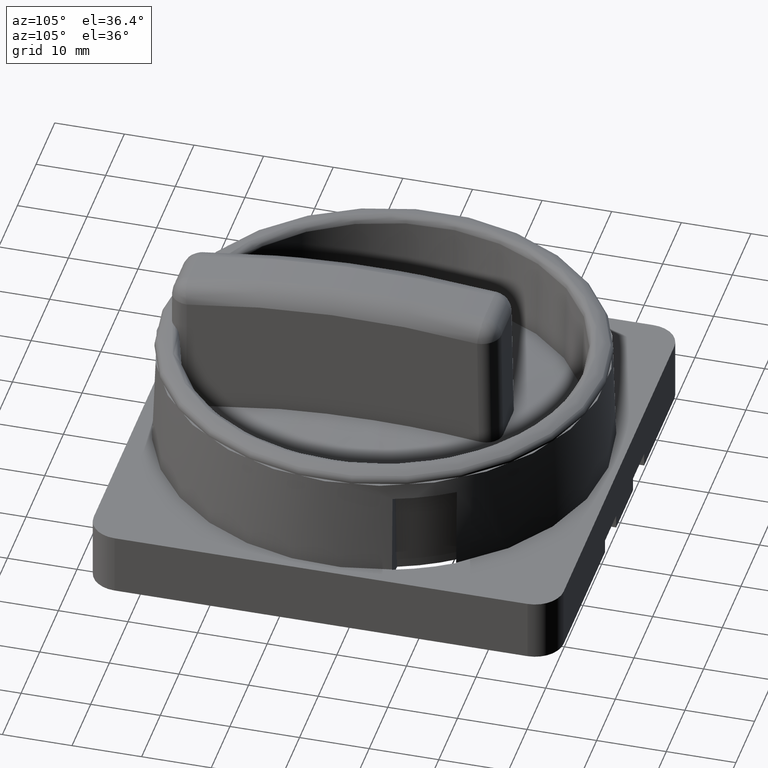
[diagram: clean part render]
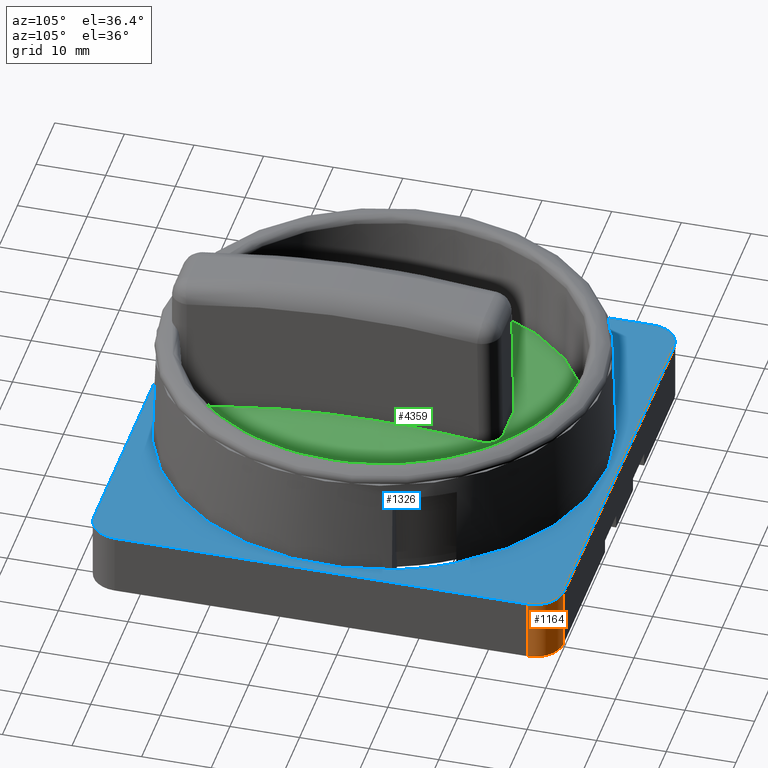
[diagram: same view with three faces highlighted in distinct colors, each labeled with its STEP entity id]
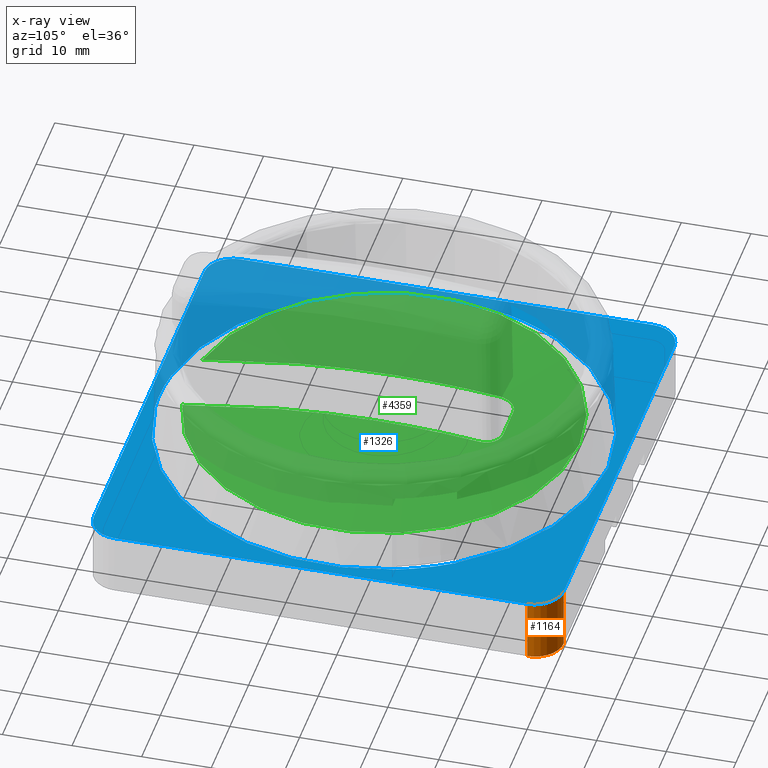
[diagram: x-ray of the same camera — body ghosted, the three highlighted faces saturated]
A machine part, auxiliary view with three faces highlighted in distinct colors.
The next image is the same camera in x-ray (body ghosted, the three faces saturated) — at least one of them is partly hidden behind the body in this view.
Their STEP definitions:

[orange] entity #1164 — the highlighted cylindrical surface (edge-blend (fillet) strip) has radius 4.1 mm, axis along (0, 0, -1).
#245=CARTESIAN_POINT('',(141.33807375256998,150.264225820018,50.0));
#246=VERTEX_POINT('',#245);
#253=CARTESIAN_POINT('',(145.43807423814602,146.16422533444199,50.0));
#254=VERTEX_POINT('',#253);
#255=CARTESIAN_POINT('',(141.33807375256998,146.16422533444199,50.0));
#256=DIRECTION('',(0.0,0.0,-1.0));
#257=DIRECTION('',(1.0,0.0,0.0));
#258=AXIS2_PLACEMENT_3D('',#255,#256,#257);
#259=CIRCLE('',#258,4.100000485576);
#260=EDGE_CURVE('',#246,#254,#259,.T.);
#1108=CARTESIAN_POINT('',(141.33807375256998,150.264225820018,59.0));
#1109=VERTEX_POINT('',#1108);
#1116=CARTESIAN_POINT('',(141.33807375256998,150.264225820018,59.0));
#1117=DIRECTION('',(0.0,0.0,-1.0));
#1118=VECTOR('',#1117,9.0);
#1119=LINE('',#1116,#1118);
#1120=EDGE_CURVE('',#1109,#246,#1119,.T.);
#1140=CARTESIAN_POINT('',(141.33807375256998,146.16422533444199,59.0));
#1141=DIRECTION('',(0.0,0.0,-1.0));
#1142=DIRECTION('',(-1.0,0.0,0.0));
#1143=AXIS2_PLACEMENT_3D('',#1140,#1141,#1142);
#1144=CYLINDRICAL_SURFACE('',#1143,4.100000485576);
#1145=ORIENTED_EDGE('',*,*,#260,.F.);
#1146=ORIENTED_EDGE('',*,*,#1120,.F.);
#1147=CARTESIAN_POINT('',(145.43807423814602,146.16422533444199,59.0));
#1148=VERTEX_POINT('',#1147);
#1149=CARTESIAN_POINT('',(141.33807375256998,146.16422533444199,59.0));
#1150=DIRECTION('',(0.0,0.0,-1.0));
#1151=DIRECTION('',(1.0,0.0,0.0));
#1152=AXIS2_PLACEMENT_3D('',#1149,#1150,#1151);
#1153=CIRCLE('',#1152,4.100000485576);
#1154=EDGE_CURVE('',#1109,#1148,#1153,.T.);
#1155=ORIENTED_EDGE('',*,*,#1154,.T.);
#1156=CARTESIAN_POINT('',(145.43807423814602,146.16422533444199,59.0));
#1157=DIRECTION('',(0.0,0.0,-1.0));
#1158=VECTOR('',#1157,9.0);
#1159=LINE('',#1156,#1158);
#1160=EDGE_CURVE('',#1148,#254,#1159,.T.);
#1161=ORIENTED_EDGE('',*,*,#1160,.T.);
#1162=EDGE_LOOP('',(#1145,#1146,#1155,#1161));
#1163=FACE_OUTER_BOUND('',#1162,.T.);
#1164=ADVANCED_FACE('',(#1163),#1144,.T.);

[blue] entity #1326 — the highlighted planar face has unit normal (0, 0, -1).
#971=CARTESIAN_POINT('',(141.33807375256998,82.764225820017913,59.0));
#972=VERTEX_POINT('',#971);
#979=CARTESIAN_POINT('',(82.038074723722204,82.764225820017913,59.0));
#980=VERTEX_POINT('',#979);
#981=CARTESIAN_POINT('',(141.33807375256998,82.764225820017913,59.0));
#982=DIRECTION('',(-1.0,0.0,0.0));
#983=VECTOR('',#982,59.299999028847793);
#984=LINE('',#981,#983);
#985=EDGE_CURVE('',#972,#980,#984,.T.);
#1003=CARTESIAN_POINT('',(77.9380742381462,86.864226305594087,58.999999999999801));
#1004=VERTEX_POINT('',#1003);
#1005=CARTESIAN_POINT('',(82.038074723722318,86.864226305594087,58.999999999999801));
#1006=DIRECTION('',(0.0,0.0,-1.0));
#1007=DIRECTION('',(-1.0,0.0,0.0));
#1008=AXIS2_PLACEMENT_3D('',#1005,#1006,#1007);
#1009=CIRCLE('',#1008,4.10000048557613);
#1010=EDGE_CURVE('',#980,#1004,#1009,.T.);
#1028=CARTESIAN_POINT('',(77.9380742381461,146.16422533444199,59.0));
#1029=VERTEX_POINT('',#1028);
#1030=CARTESIAN_POINT('',(77.938074238146001,86.864226305594087,59.0));
#1031=DIRECTION('',(0.0,1.0,0.0));
#1032=VECTOR('',#1031,59.299999028847907);
#1033=LINE('',#1030,#1032);
#1034=EDGE_CURVE('',#1004,#1029,#1033,.T.);
#1052=CARTESIAN_POINT('',(82.038074723722104,150.264225820018,59.0));
#1053=VERTEX_POINT('',#1052);
#1054=CARTESIAN_POINT('',(82.038074723722104,146.16422533444199,59.0));
#1055=DIRECTION('',(0.0,0.0,-1.0));
#1056=DIRECTION('',(0.0,1.0,0.0));
#1057=AXIS2_PLACEMENT_3D('',#1054,#1055,#1056);
#1058=CIRCLE('',#1057,4.10000048557607);
#1059=EDGE_CURVE('',#1029,#1053,#1058,.T.);
#1108=CARTESIAN_POINT('',(141.33807375256998,150.264225820018,59.0));
#1109=VERTEX_POINT('',#1108);
#1110=CARTESIAN_POINT('',(82.038074723722104,150.264225820018,59.0));
#1111=DIRECTION('',(1.0,0.0,0.0));
#1112=VECTOR('',#1111,59.299999028847878);
#1113=LINE('',#1110,#1112);
#1114=EDGE_CURVE('',#1053,#1109,#1113,.T.);
#1147=CARTESIAN_POINT('',(145.43807423814602,146.16422533444199,59.0));
#1148=VERTEX_POINT('',#1147);
#1149=CARTESIAN_POINT('',(141.33807375256998,146.16422533444199,59.0));
#1150=DIRECTION('',(0.0,0.0,-1.0));
#1151=DIRECTION('',(1.0,0.0,0.0));
#1152=AXIS2_PLACEMENT_3D('',#1149,#1150,#1151);
#1153=CIRCLE('',#1152,4.100000485576);
#1154=EDGE_CURVE('',#1109,#1148,#1153,.T.);
#1172=CARTESIAN_POINT('',(145.43807423814602,86.864226305594002,59.0));
#1173=VERTEX_POINT('',#1172);
#1174=CARTESIAN_POINT('',(145.43807423814602,146.16422533444199,59.0));
#1175=DIRECTION('',(0.0,-1.0,0.0));
#1176=VECTOR('',#1175,59.299999028848006);
#1177=LINE('',#1174,#1176);
#1178=EDGE_CURVE('',#1148,#1173,#1177,.T.);
#1196=CARTESIAN_POINT('',(141.33807375256998,86.864226305594002,59.0));
#1197=DIRECTION('',(0.0,0.0,-1.0));
#1198=DIRECTION('',(0.0,-1.0,0.0));
#1199=AXIS2_PLACEMENT_3D('',#1196,#1197,#1198);
#1200=CIRCLE('',#1199,4.10000048557608);
#1201=EDGE_CURVE('',#1173,#972,#1200,.T.);
#1207=CARTESIAN_POINT('',(82.038074723722318,86.864226305594087,58.999999999999801));
#1208=DIRECTION('',(0.0,0.0,-1.0));
#1209=DIRECTION('',(-1.0,0.0,0.0));
#1210=AXIS2_PLACEMENT_3D('',#1207,#1208,#1209);
#1211=PLANE('',#1210);
#1212=ORIENTED_EDGE('',*,*,#985,.F.);
#1213=ORIENTED_EDGE('',*,*,#1201,.F.);
#1214=ORIENTED_EDGE('',*,*,#1178,.F.);
#1215=ORIENTED_EDGE('',*,*,#1154,.F.);
#1216=ORIENTED_EDGE('',*,*,#1114,.F.);
#1217=ORIENTED_EDGE('',*,*,#1059,.F.);
#1218=ORIENTED_EDGE('',*,*,#1034,.F.);
#1219=ORIENTED_EDGE('',*,*,#1010,.F.);
#1220=EDGE_LOOP('',(#1212,#1213,#1214,#1215,#1216,#1217,#1218,#1219));
#1221=FACE_OUTER_BOUND('',#1220,.T.);
#1222=CARTESIAN_POINT('',(106.55728400000301,84.697526651739707,59.0));
#1223=VERTEX_POINT('',#1222);
#1224=CARTESIAN_POINT('',(80.861667390058599,125.91422556835502,59.0));
#1225=VERTEX_POINT('',#1224);
#1226=CARTESIAN_POINT('',(111.68807423814602,116.51422582001801,59.0));
#1227=DIRECTION('',(0.0,0.0,-1.0));
#1228=DIRECTION('',(-1.0,0.0,0.0));
#1229=AXIS2_PLACEMENT_3D('',#1226,#1227,#1228);
#1230=CIRCLE('',#1229,32.227742000216899);
#1231=EDGE_CURVE('',#1223,#1225,#1230,.T.);
#1232=ORIENTED_EDGE('',*,*,#1231,.T.);
#1233=CARTESIAN_POINT('',(80.7861324750275,125.91422556835502,58.999999999999801));
#1234=VERTEX_POINT('',#1233);
#1235=CARTESIAN_POINT('',(80.861667390058599,125.91422556835502,58.999999999999801));
#1236=DIRECTION('',(-1.0,0.0,0.0));
#1237=VECTOR('',#1236,0.075534915031099);
#1238=LINE('',#1235,#1237);
#1239=EDGE_CURVE('',#1225,#1234,#1238,.T.);
#1240=ORIENTED_EDGE('',*,*,#1239,.T.);
#1241=CARTESIAN_POINT('',(84.60431510359291,134.11422556835501,58.999999999999801));
#1242=VERTEX_POINT('',#1241);
#1243=CARTESIAN_POINT('',(111.688074238148,116.51422582001901,58.999999999999702));
#1244=DIRECTION('',(0.0,0.0,-1.0));
#1245=DIRECTION('',(-1.0,0.0,0.0));
#1246=AXIS2_PLACEMENT_3D('',#1243,#1244,#1245);
#1247=CIRCLE('',#1246,32.299999999999898);
#1248=EDGE_CURVE('',#1234,#1242,#1247,.T.);
#1249=ORIENTED_EDGE('',*,*,#1248,.T.);
#1250=CARTESIAN_POINT('',(84.690530585230192,134.11422556835501,59.0));
#1251=VERTEX_POINT('',#1250);
#1252=CARTESIAN_POINT('',(84.60431510359291,134.11422556835501,58.999999999999801));
#1253=DIRECTION('',(1.0,0.0,0.0));
#1254=VECTOR('',#1253,0.086215481637296);
#1255=LINE('',#1252,#1254);
#1256=EDGE_CURVE('',#1242,#1251,#1255,.T.);
#1257=ORIENTED_EDGE('',*,*,#1256,.T.);
#1258=CARTESIAN_POINT('',(138.68561789106201,134.11422556835501,59.0));
#1259=VERTEX_POINT('',#1258);
#1260=CARTESIAN_POINT('',(111.68807423814602,116.51422582001801,59.0));
#1261=DIRECTION('',(0.0,0.0,-1.0));
#1262=DIRECTION('',(-1.0,0.0,0.0));
#1263=AXIS2_PLACEMENT_3D('',#1260,#1261,#1262);
#1264=CIRCLE('',#1263,32.227742000216899);
#1265=EDGE_CURVE('',#1251,#1259,#1264,.T.);
#1266=ORIENTED_EDGE('',*,*,#1265,.T.);
#1267=CARTESIAN_POINT('',(138.77183337270304,134.11422556835501,58.999999999999801));
#1268=VERTEX_POINT('',#1267);
#1269=CARTESIAN_POINT('',(138.68561789106201,134.11422556835501,58.999999999999801));
#1270=DIRECTION('',(1.0,0.0,0.0));
#1271=VECTOR('',#1270,0.086215481641005);
#1272=LINE('',#1269,#1271);
#1273=EDGE_CURVE('',#1259,#1268,#1272,.T.);
#1274=ORIENTED_EDGE('',*,*,#1273,.T.);
#1275=CARTESIAN_POINT('',(142.590016001268,125.914225568354,58.999999999999801));
#1276=VERTEX_POINT('',#1275);
#1277=CARTESIAN_POINT('',(111.688074238148,116.51422582001901,58.999999999999702));
#1278=DIRECTION('',(0.0,0.0,-1.0));
#1279=DIRECTION('',(-1.0,0.0,0.0));
#1280=AXIS2_PLACEMENT_3D('',#1277,#1278,#1279);
#1281=CIRCLE('',#1280,32.300000000000196);
#1282=EDGE_CURVE('',#1268,#1276,#1281,.T.);
#1283=ORIENTED_EDGE('',*,*,#1282,.T.);
#1284=CARTESIAN_POINT('',(142.51448108623401,125.914225568354,59.0));
#1285=VERTEX_POINT('',#1284);
#1286=CARTESIAN_POINT('',(142.590016001268,125.91422556836001,58.999999999999801));
#1287=DIRECTION('',(-1.0,0.0,0.0));
#1288=VECTOR('',#1287,0.075534915034012);
#1289=LINE('',#1286,#1288);
#1290=EDGE_CURVE('',#1276,#1285,#1289,.T.);
#1291=ORIENTED_EDGE('',*,*,#1290,.T.);
#1292=CARTESIAN_POINT('',(114.75732674849901,84.432968932853612,59.0));
#1293=VERTEX_POINT('',#1292);
#1294=CARTESIAN_POINT('',(111.68807423814602,116.51422582001801,59.0));
#1295=DIRECTION('',(0.0,0.0,-1.0));
#1296=DIRECTION('',(-1.0,0.0,0.0));
#1297=AXIS2_PLACEMENT_3D('',#1294,#1295,#1296);
#1298=CIRCLE('',#1297,32.227742000216899);
#1299=EDGE_CURVE('',#1285,#1293,#1298,.T.);
#1300=ORIENTED_EDGE('',*,*,#1299,.T.);
#1301=CARTESIAN_POINT('',(114.75732674941845,84.36038172414122,58.999999999999709));
#1302=VERTEX_POINT('',#1301);
#1303=CARTESIAN_POINT('',(114.75732674849901,84.432968932853612,58.999999999999702));
#1304=DIRECTION('',(0.0,-1.0,0.0));
#1305=VECTOR('',#1304,0.072587208712378);
#1306=LINE('',#1303,#1305);
#1307=EDGE_CURVE('',#1293,#1302,#1306,.T.);
#1308=ORIENTED_EDGE('',*,*,#1307,.T.);
#1309=CARTESIAN_POINT('',(106.55732081327102,84.624331350248298,58.999999999999801));
#1310=VERTEX_POINT('',#1309);
#1311=CARTESIAN_POINT('',(111.68807430699999,116.51422583108,58.999999999999702));
#1312=DIRECTION('',(0.0,0.0,-1.0));
#1313=DIRECTION('',(-1.0,0.0,0.0));
#1314=AXIS2_PLACEMENT_3D('',#1311,#1312,#1313);
#1315=CIRCLE('',#1314,32.300000021857599);
#1316=EDGE_CURVE('',#1302,#1310,#1315,.T.);
#1317=ORIENTED_EDGE('',*,*,#1316,.T.);
#1318=CARTESIAN_POINT('',(106.55732081327089,84.624331350248298,58.999999999999801));
#1319=DIRECTION('',(-0.000502945711088,0.999999873522798,0.0));
#1320=VECTOR('',#1319,0.073195310748948);
#1321=LINE('',#1318,#1320);
#1322=EDGE_CURVE('',#1310,#1223,#1321,.T.);
#1323=ORIENTED_EDGE('',*,*,#1322,.T.);
#1324=EDGE_LOOP('',(#1232,#1240,#1249,#1257,#1266,#1274,#1283,#1291,#1300,#1308,#1317,#1323));
#1325=FACE_BOUND('',#1324,.T.);
#1326=ADVANCED_FACE('',(#1221,#1325),#1211,.F.);

[green] entity #4359 — the highlighted spherical surface has radius 145 mm.
#3363=CARTESIAN_POINT('',(117.142176670976,116.51422582001801,64.851939814165604));
#3364=VERTEX_POINT('',#3363);
#3365=CARTESIAN_POINT('',(117.14137186607906,116.51422582001815,64.851970105068773));
#3366=VERTEX_POINT('',#3365);
#3367=CARTESIAN_POINT('',(111.68807423814602,116.51422582001801,-80.045447210763911));
#3368=DIRECTION('',(0.0,-1.0,0.0));
#3369=DIRECTION('',(0.0,0.0,-1.0));
#3370=AXIS2_PLACEMENT_3D('',#3367,#3368,#3369);
#3371=CIRCLE('',#3370,145.0);
#3372=EDGE_CURVE('',#3364,#3366,#3371,.T.);
#3507=CARTESIAN_POINT('',(106.22779365991902,131.60022408054999,64.064226276099205));
#3508=VERTEX_POINT('',#3507);
#3515=CARTESIAN_POINT('',(106.23397180531599,116.51422582001801,64.851939814165604));
#3516=VERTEX_POINT('',#3515);
#3517=CARTESIAN_POINT('',(105.09792710259902,116.51422582001801,-79.993759782249811));
#3518=DIRECTION('',(0.999969244017954,0.0,-0.007842896031513));
#3519=DIRECTION('',(-0.007842896031513,0.0,-0.999969244017954));
#3520=AXIS2_PLACEMENT_3D('',#3517,#3518,#3519);
#3521=CIRCLE('',#3520,144.85015460517002);
#3522=EDGE_CURVE('',#3508,#3516,#3521,.T.);
#3564=CARTESIAN_POINT('',(108.97564366572702,134.35440186676601,63.82731198642));
#3565=VERTEX_POINT('',#3564);
#3566=CARTESIAN_POINT('',(114.40050481056502,134.35440186676601,63.82731198642));
#3567=VERTEX_POINT('',#3566);
#3568=CARTESIAN_POINT('',(111.68807423814602,136.85951143274602,-79.690318929410594));
#3569=DIRECTION('',(0.0,0.999847695156391,0.017452406437284));
#3570=DIRECTION('',(0.0,-0.017452406437284,0.999847695156391));
#3571=AXIS2_PLACEMENT_3D('',#3568,#3569,#3570);
#3572=CIRCLE('',#3571,143.56511845584299);
#3573=EDGE_CURVE('',#3565,#3567,#3572,.T.);
#3605=CARTESIAN_POINT('',(106.23477661021325,116.51422582001805,64.851970105068773));
#3606=VERTEX_POINT('',#3605);
#3607=CARTESIAN_POINT('',(111.68807423814602,116.51422582001801,-80.045447210763911));
#3608=DIRECTION('',(0.0,-1.0,0.0));
#3609=DIRECTION('',(0.0,0.0,-1.0));
#3610=AXIS2_PLACEMENT_3D('',#3607,#3608,#3609);
#3611=CIRCLE('',#3610,145.0);
#3612=EDGE_CURVE('',#3606,#3516,#3611,.T.);
#3630=CARTESIAN_POINT('',(117.148354816373,131.60022408054999,64.064226276099205));
#3631=VERTEX_POINT('',#3630);
#3632=CARTESIAN_POINT('',(118.27822137369299,116.51422582001801,-79.993759782249811));
#3633=DIRECTION('',(-0.999969244017954,0.0,-0.007842896031513));
#3634=DIRECTION('',(-0.007842896031513,0.0,0.999969244017954));
#3635=AXIS2_PLACEMENT_3D('',#3632,#3633,#3634);
#3636=CIRCLE('',#3635,144.85015460517002);
#3637=EDGE_CURVE('',#3364,#3631,#3636,.T.);
#3679=CARTESIAN_POINT('',(106.22779365991966,131.60022408055002,64.06422627609912));
#3680=CARTESIAN_POINT('',(106.22750975412954,131.94590422520224,64.028028287858788));
#3681=CARTESIAN_POINT('',(106.29610144573309,132.31499042312655,63.990654864405634));
#3682=CARTESIAN_POINT('',(106.57670864245104,132.99472741162316,63.924700187214171));
#3683=CARTESIAN_POINT('',(106.78879981955048,133.30534865468758,63.896124912558392));
#3684=CARTESIAN_POINT('',(107.27775580590078,133.79413240886805,63.854076485026745));
#3685=CARTESIAN_POINT('',(107.58634749084115,134.00544918361328,63.83772431936444));
#3686=CARTESIAN_POINT('',(108.26283844124164,134.28564482048441,63.82108306323186));
#3687=CARTESIAN_POINT('',(108.63074108489434,134.35451561351317,63.820795439632491));
#3688=CARTESIAN_POINT('',(108.9756436657275,134.3544018667659,63.827311986419986));
#3689=B_SPLINE_CURVE_WITH_KNOTS('',3,(#3679,#3680,#3681,#3682,#3683,#3684,#3685,#3686,#3687,#3688),.UNSPECIFIED.,.F.,.U.,(4,2,2,2,4),(0.416401516330364,0.520667521218323,0.624971447378714,0.72846069403127,0.831949940683827),.UNSPECIFIED.);
#3690=EDGE_CURVE('',#3508,#3565,#3689,.T.);
#3709=CARTESIAN_POINT('',(114.40050481056502,134.35440186676635,63.827311986419886));
#3710=CARTESIAN_POINT('',(114.74540739139819,134.3545156135136,63.820795439632398));
#3711=CARTESIAN_POINT('',(115.1133100350505,134.28564482048489,63.821083063231789));
#3712=CARTESIAN_POINT('',(115.78980098545101,134.00544918361373,63.837724319364369));
#3713=CARTESIAN_POINT('',(116.09839267039136,133.79413240886851,63.854076485026653));
#3714=CARTESIAN_POINT('',(116.58734865674168,133.30534865468803,63.896124912558314));
#3715=CARTESIAN_POINT('',(116.79943983384109,132.99472741162367,63.924700187214142));
#3716=CARTESIAN_POINT('',(117.08004703055907,132.31499042312691,63.99065486440562));
#3717=CARTESIAN_POINT('',(117.14863872216267,131.94590422520238,64.028028287858746));
#3718=CARTESIAN_POINT('',(117.1483548163725,131.60022408055002,64.064226276099106));
#3719=B_SPLINE_CURVE_WITH_KNOTS('',3,(#3709,#3710,#3711,#3712,#3713,#3714,#3715,#3716,#3717,#3718),.UNSPECIFIED.,.F.,.U.,(4,2,2,2,4),(3.708378E-014,0.103489246652596,0.206978493305155,0.311282419465548,0.415548424353555),.UNSPECIFIED.);
#3720=EDGE_CURVE('',#3567,#3631,#3719,.T.);
#4173=CARTESIAN_POINT('',(106.215035015693,89.624321482379813,62.334252487595883));
#4174=VERTEX_POINT('',#4173);
#4181=CARTESIAN_POINT('',(106.29841312235001,88.947953016078216,62.208031329325408));
#4182=VERTEX_POINT('',#4181);
#4183=CARTESIAN_POINT('',(106.21503501569291,89.624321482260015,62.334252488230149));
#4184=CARTESIAN_POINT('',(106.21486649966342,89.510517648914686,62.312752959201532));
#4185=CARTESIAN_POINT('',(106.22184021531034,89.396493162111582,62.291344496988017));
#4186=CARTESIAN_POINT('',(106.23577161198561,89.283472754086674,62.270252849120673));
#4187=CARTESIAN_POINT('',(106.24695556093116,89.192741400826222,62.253320741132924));
#4188=CARTESIAN_POINT('',(106.26261957991021,89.10260277733795,62.236583181445972));
#4189=CARTESIAN_POINT('',(106.2827819634925,89.013409792810748,62.220107181911558));
#4190=CARTESIAN_POINT('',(106.28772341951088,88.991550114941276,62.216069195692015));
#4191=CARTESIAN_POINT('',(106.29293064210545,88.9697387713273,62.212045314554246));
#4192=CARTESIAN_POINT('',(106.29841312234998,88.947953016077449,62.208031329325195));
#4193=B_SPLINE_CURVE_WITH_KNOTS('',3,(#4183,#4184,#4185,#4186,#4187,#4188,#4189,#4190,#4191,#4192),.UNSPECIFIED.,.F.,.U.,(4,3,3,4),(5.799354E-012,0.034744591746101,0.062637110293585,0.069473090428667),.UNSPECIFIED.);
#4194=EDGE_CURVE('',#4174,#4182,#4193,.T.);
#4232=CARTESIAN_POINT('',(106.21503501569293,89.624321482259987,62.334252488230092));
#4233=CARTESIAN_POINT('',(106.221595150553,94.054573521946466,63.1712043687766));
#4234=CARTESIAN_POINT('',(106.22653112509167,98.521478705570985,63.800860571950494));
#4235=CARTESIAN_POINT('',(106.2331224329568,107.49944760149677,64.641473100079054));
#4236=CARTESIAN_POINT('',(106.23477416403267,112.00560801292725,64.851970013635523));
#4237=CARTESIAN_POINT('',(106.23477661024266,116.51422582001805,64.851970105700033));
#4238=B_SPLINE_CURVE_WITH_KNOTS('',3,(#4232,#4233,#4234,#4235,#4236,#4237),.UNSPECIFIED.,.F.,.U.,(4,2,4),(0.000000999994278,1.352586843221645,2.705171686454418),.UNSPECIFIED.);
#4239=EDGE_CURVE('',#4174,#3606,#4238,.T.);
#4273=CARTESIAN_POINT('',(117.16111346059903,89.624321482379884,62.334252487595919));
#4274=VERTEX_POINT('',#4273);
#4275=CARTESIAN_POINT('',(117.14137186604935,116.51422582001814,64.851970105700033));
#4276=CARTESIAN_POINT('',(117.14137431225934,112.00560801289468,64.851970013635508));
#4277=CARTESIAN_POINT('',(117.1430260433352,107.49944760143086,64.641473100076027));
#4278=CARTESIAN_POINT('',(117.1496173512004,98.521478705505046,63.800860571941243));
#4279=CARTESIAN_POINT('',(117.15455332573903,94.054573521913426,63.171204368770361));
#4280=CARTESIAN_POINT('',(117.16111346059904,89.624321482260115,62.334252488230113));
#4281=B_SPLINE_CURVE_WITH_KNOTS('',3,(#4275,#4276,#4277,#4278,#4279,#4280),.UNSPECIFIED.,.F.,.U.,(4,2,4),(0.000001000000016,1.352585843230374,2.705171686435448),.UNSPECIFIED.);
#4282=EDGE_CURVE('',#3366,#4274,#4281,.T.);
#4308=CARTESIAN_POINT('',(117.07771739366201,88.947949504553193,62.208031329325408));
#4309=VERTEX_POINT('',#4308);
#4316=CARTESIAN_POINT('',(117.07771739366193,88.947949504553321,62.208031329325415));
#4317=CARTESIAN_POINT('',(117.08350131824943,88.970892279254187,62.212258105249575));
#4318=CARTESIAN_POINT('',(117.08899061019459,88.993919486332373,62.216506331539556));
#4319=CARTESIAN_POINT('',(117.09417706987901,89.017006714371405,62.220771243800684));
#4320=CARTESIAN_POINT('',(117.11395141101514,89.105031060632285,62.237032014171731));
#4321=CARTESIAN_POINT('',(117.12946771501875,89.194185329336207,62.253586676273315));
#4322=CARTESIAN_POINT('',(117.1405102782518,89.283736183688092,62.270298142286478));
#4323=CARTESIAN_POINT('',(117.15446129794422,89.396873478550788,62.291411174335181));
#4324=CARTESIAN_POINT('',(117.16128214504074,89.51040391565995,62.312731473005975));
#4325=CARTESIAN_POINT('',(117.16111346059911,89.624321482260115,62.334252488230142));
#4326=B_SPLINE_CURVE_WITH_KNOTS('',3,(#4316,#4317,#4318,#4319,#4320,#4321,#4322,#4323,#4324,#4325),.UNSPECIFIED.,.F.,.U.,(4,3,3,4),(0.000000999999932,0.007211555697673,0.034703138940069,0.069435620076604),.UNSPECIFIED.);
#4327=EDGE_CURVE('',#4309,#4274,#4326,.T.);
#4334=CARTESIAN_POINT('',(111.68807423814602,116.51422582001801,-80.045447210763911));
#4335=DIRECTION('',(0.0,0.0,1.0));
#4336=DIRECTION('',(1.0,0.0,0.0));
#4337=AXIS2_PLACEMENT_3D('',#4334,#4335,#4336);
#4338=SPHERICAL_SURFACE('',#4337,145.0);
#4339=ORIENTED_EDGE('',*,*,#4194,.F.);
#4340=ORIENTED_EDGE('',*,*,#4239,.T.);
#4341=ORIENTED_EDGE('',*,*,#3612,.T.);
#4342=ORIENTED_EDGE('',*,*,#3522,.F.);
#4343=ORIENTED_EDGE('',*,*,#3690,.T.);
#4344=ORIENTED_EDGE('',*,*,#3573,.T.);
#4345=ORIENTED_EDGE('',*,*,#3720,.T.);
#4346=ORIENTED_EDGE('',*,*,#3637,.F.);
#4347=ORIENTED_EDGE('',*,*,#3372,.T.);
#4348=ORIENTED_EDGE('',*,*,#4282,.T.);
#4349=ORIENTED_EDGE('',*,*,#4327,.F.);
#4350=CARTESIAN_POINT('',(111.68807423814602,116.51422582001801,62.208031329325408));
#4351=DIRECTION('',(0.0,0.0,1.0));
#4352=DIRECTION('',(0.0,-1.0,0.0));
#4353=AXIS2_PLACEMENT_3D('',#4350,#4351,#4352);
#4354=CIRCLE('',#4353,28.0882153801975);
#4355=EDGE_CURVE('',#4309,#4182,#4354,.T.);
#4356=ORIENTED_EDGE('',*,*,#4355,.T.);
#4357=EDGE_LOOP('',(#4339,#4340,#4341,#4342,#4343,#4344,#4345,#4346,#4347,#4348,#4349,#4356));
#4358=FACE_OUTER_BOUND('',#4357,.T.);
#4359=ADVANCED_FACE('',(#4358),#4338,.T.);